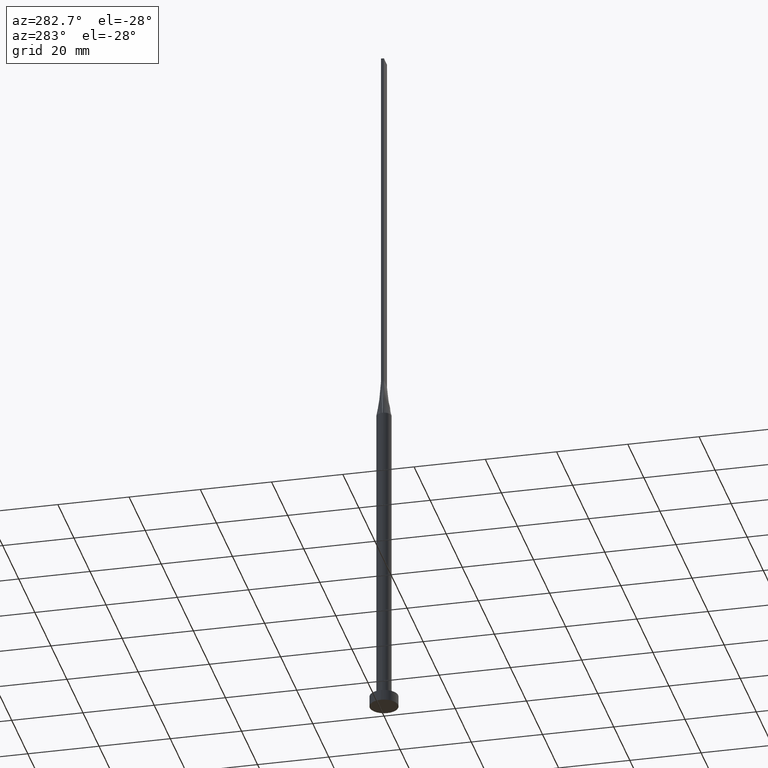
[diagram: clean part render]
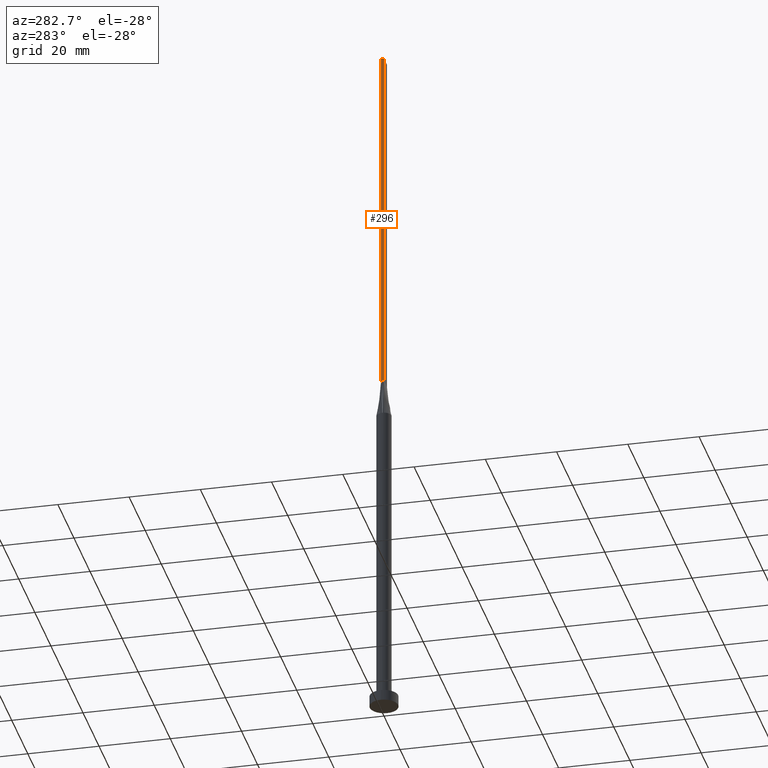
[diagram: same view with one face highlighted and labeled with its STEP entity id]
A machine part, auxiliary view. The second image highlights one B-rep face of the part: STEP entity #296.
In plain terms, the highlighted planar face has unit normal (1, -0, 0).
Its self-contained STEP definition (entity closure, byte-faithful):
#2 = LINE ( 'NONE', #228, #513 ) ;
#31 = VECTOR ( 'NONE', #89, 1000.000000000000000 ) ;
#40 = LINE ( 'NONE', #449, #221 ) ;
#48 = CARTESIAN_POINT ( 'NONE',  ( -1.899999999999999689, 0.4000000000000002442, 200.0000000000000000 ) ) ;
#85 = CARTESIAN_POINT ( 'NONE',  ( -1.899999999999999689, 0.4000000000000002442, 99.99999999999998579 ) ) ;
#89 = DIRECTION ( 'NONE',  ( -2.710505431213761578E-16, -1.000000000000000000, 0.000000000000000000 ) ) ;
#110 = VERTEX_POINT ( 'NONE', #409 ) ;
#141 = FACE_OUTER_BOUND ( 'NONE', #497, .T. ) ;
#164 = LINE ( 'NONE', #241, #414 ) ;
#180 = PLANE ( 'NONE',  #548 ) ;
#206 = EDGE_CURVE ( 'NONE', #360, #320, #2, .T. ) ;
#221 = VECTOR ( 'NONE', #223, 1000.000000000000000 ) ;
#223 = DIRECTION ( 'NONE',  ( -0.000000000000000000, -0.000000000000000000, -1.000000000000000000 ) ) ;
#228 = CARTESIAN_POINT ( 'NONE',  ( -1.899999999999999689, 0.4000000000000002442, 200.0000000000000000 ) ) ;
#235 = EDGE_CURVE ( 'NONE', #561, #110, #495, .T. ) ;
#241 = CARTESIAN_POINT ( 'NONE',  ( -1.899999999999999911, -0.3999999999999995781, 200.0000000000000000 ) ) ;
#272 = CARTESIAN_POINT ( 'NONE',  ( -1.899999999999999689, 0.4000000000000002442, 200.0000000000000000 ) ) ;
#283 = ORIENTED_EDGE ( 'NONE', *, *, #546, .T. ) ;
#296 = ADVANCED_FACE ( 'NONE', ( #141 ), #180, .F. ) ;
#309 = CARTESIAN_POINT ( 'NONE',  ( -1.899999999999999689, 0.4000000000000002442, 99.99999999999998579 ) ) ;
#318 = DIRECTION ( 'NONE',  ( 2.710505431213761578E-16, 1.000000000000000000, 0.000000000000000000 ) ) ;
#320 = VERTEX_POINT ( 'NONE', #451 ) ;
#325 = ORIENTED_EDGE ( 'NONE', *, *, #206, .F. ) ;
#360 = VERTEX_POINT ( 'NONE', #272 ) ;
#370 = DIRECTION ( 'NONE',  ( 1.000000000000000000, -2.710505431213761578E-16, 0.000000000000000000 ) ) ;
#409 = CARTESIAN_POINT ( 'NONE',  ( -1.899999999999999911, -0.3999999999999995781, 99.99999999999998579 ) ) ;
#414 = VECTOR ( 'NONE', #472, 1000.000000000000000 ) ;
#449 = CARTESIAN_POINT ( 'NONE',  ( -1.899999999999999689, 0.4000000000000002442, 200.0000000000000000 ) ) ;
#451 = CARTESIAN_POINT ( 'NONE',  ( -1.899999999999999911, -0.3999999999999995781, 200.0000000000000000 ) ) ;
#454 = EDGE_CURVE ( 'NONE', #320, #110, #164, .T. ) ;
#472 = DIRECTION ( 'NONE',  ( -0.000000000000000000, -0.000000000000000000, -1.000000000000000000 ) ) ;
#495 = LINE ( 'NONE', #85, #31 ) ;
#497 = EDGE_LOOP ( 'NONE', ( #566, #554, #325, #283 ) ) ;
#513 = VECTOR ( 'NONE', #580, 1000.000000000000000 ) ;
#546 = EDGE_CURVE ( 'NONE', #360, #561, #40, .T. ) ;
#548 = AXIS2_PLACEMENT_3D ( 'NONE', #48, #370, #318 ) ;
#554 = ORIENTED_EDGE ( 'NONE', *, *, #454, .F. ) ;
#561 = VERTEX_POINT ( 'NONE', #309 ) ;
#566 = ORIENTED_EDGE ( 'NONE', *, *, #235, .T. ) ;
#580 = DIRECTION ( 'NONE',  ( -2.710505431213761578E-16, -1.000000000000000000, 0.000000000000000000 ) ) ;